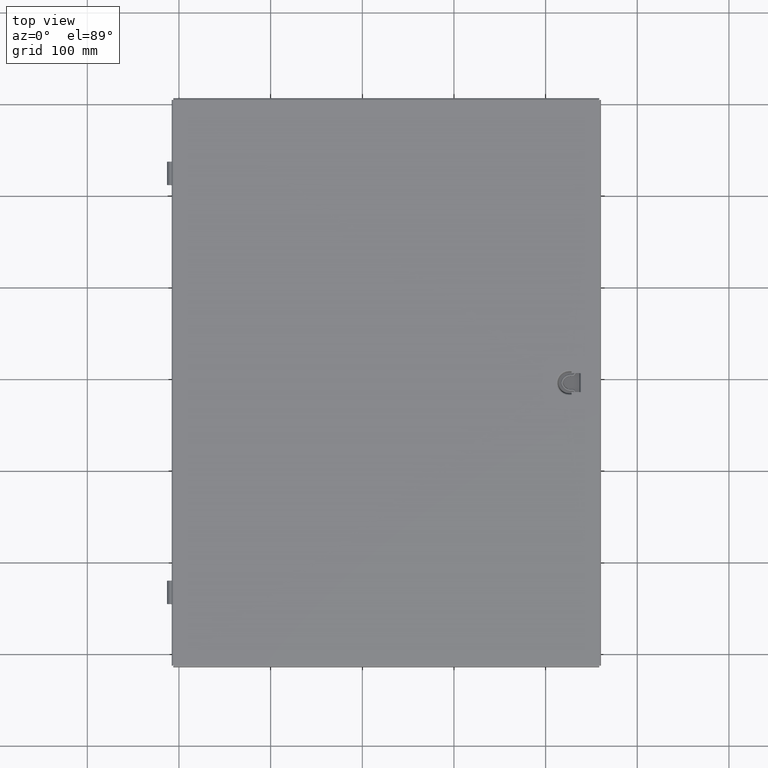
[diagram: clean part render]
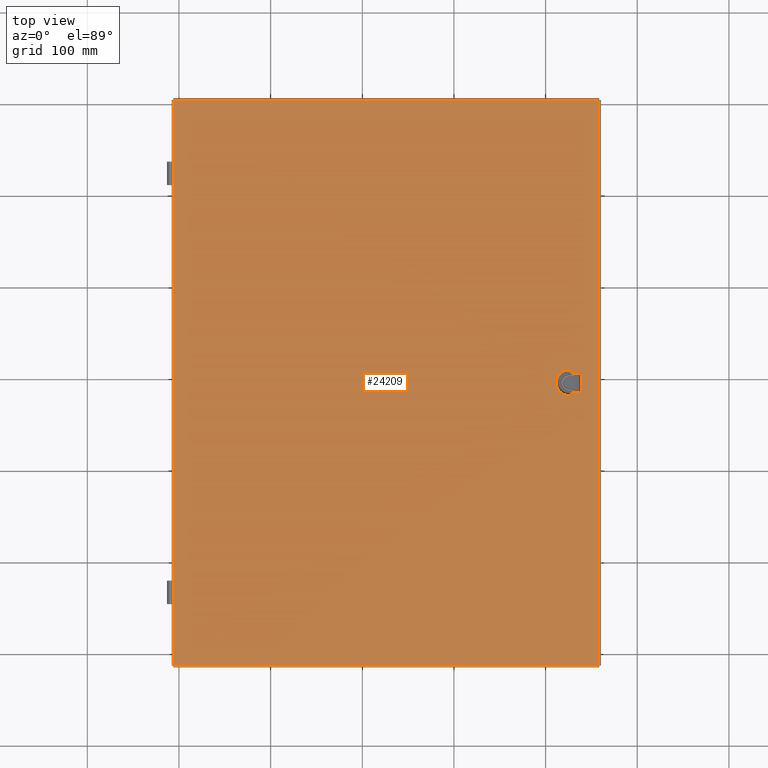
[diagram: same view with one face highlighted and labeled with its STEP entity id]
A machine part, top view. The second image highlights one B-rep face of the part: STEP entity #24209.
In plain terms, the highlighted planar face has unit normal (0, -0, 1).
Its self-contained STEP definition (entity closure, byte-faithful):
#2601=LINE($,#39969,#4981);
#2605=LINE($,#39980,#4985);
#2606=LINE($,#39989,#4986);
#2609=LINE($,#39995,#4989);
#2610=LINE($,#39997,#4990);
#2612=LINE($,#40001,#4992);
#2616=LINE($,#40007,#4996);
#2624=LINE($,#40034,#5004);
#2639=LINE($,#40133,#5019);
#2653=LINE($,#40231,#5033);
#2667=LINE($,#40328,#5047);
#4981=VECTOR($,#31907,0.8125);
#4985=VECTOR($,#31917,0.114999999999999);
#4986=VECTOR($,#31930,0.114999999999999);
#4989=VECTOR($,#31935,0.141707936748685);
#4990=VECTOR($,#31938,0.432957936748683);
#4992=VECTOR($,#31942,0.141707936748685);
#4996=VECTOR($,#31948,0.432957936748683);
#5004=VECTOR($,#31964,24.25);
#5019=VECTOR($,#31993,18.25);
#5033=VECTOR($,#32021,24.25);
#5047=VECTOR($,#32049,18.25);
#5701=FACE_BOUND($,#8508,.T.);
#5702=FACE_BOUND($,#8509,.T.);
#8508=EDGE_LOOP($,(#20667,#20668,#20669,#20670,#20671,#20672,#20673,#20674));
#8509=EDGE_LOOP($,(#20675,#20676,#20677,#20678));
#9055=CIRCLE($,#26005,0.547957936748685);
#10974=VERTEX_POINT($,#39962);
#10977=VERTEX_POINT($,#39967);
#10980=VERTEX_POINT($,#39977);
#10981=VERTEX_POINT($,#39979);
#10982=VERTEX_POINT($,#39983);
#10983=VERTEX_POINT($,#39987);
#10985=VERTEX_POINT($,#39993);
#10986=VERTEX_POINT($,#40000);
#10994=VERTEX_POINT($,#40025);
#10995=VERTEX_POINT($,#40033);
#11004=VERTEX_POINT($,#40125);
#11013=VERTEX_POINT($,#40223);
#14022=EDGE_CURVE($,#10977,#10974,#2601,.T.);
#14027=EDGE_CURVE($,#10980,#10981,#2605,.T.);
#14030=EDGE_CURVE($,#10982,#10980,#9055,.T.);
#14032=EDGE_CURVE($,#10983,#10982,#2606,.T.);
#14035=EDGE_CURVE($,#10983,#10985,#2609,.T.);
#14036=EDGE_CURVE($,#10974,#10985,#2610,.T.);
#14038=EDGE_CURVE($,#10981,#10986,#2612,.T.);
#14042=EDGE_CURVE($,#10977,#10986,#2616,.T.);
#14051=EDGE_CURVE($,#10994,#10995,#2624,.T.);
#14070=EDGE_CURVE($,#11004,#10994,#2639,.T.);
#14088=EDGE_CURVE($,#11013,#11004,#2653,.T.);
#14106=EDGE_CURVE($,#10995,#11013,#2667,.T.);
#20667=ORIENTED_EDGE($,*,*,#14042,.T.);
#20668=ORIENTED_EDGE($,*,*,#14038,.F.);
#20669=ORIENTED_EDGE($,*,*,#14027,.F.);
#20670=ORIENTED_EDGE($,*,*,#14030,.F.);
#20671=ORIENTED_EDGE($,*,*,#14032,.F.);
#20672=ORIENTED_EDGE($,*,*,#14035,.T.);
#20673=ORIENTED_EDGE($,*,*,#14036,.F.);
#20674=ORIENTED_EDGE($,*,*,#14022,.F.);
#20675=ORIENTED_EDGE($,*,*,#14088,.F.);
#20676=ORIENTED_EDGE($,*,*,#14106,.F.);
#20677=ORIENTED_EDGE($,*,*,#14051,.F.);
#20678=ORIENTED_EDGE($,*,*,#14070,.F.);
#21624=PLANE($,#26043);
#24209=ADVANCED_FACE($,(#5701,#5702),#21624,.T.);
#26005=AXIS2_PLACEMENT_3D($,#39985,#31924,#31925);
#26043=AXIS2_PLACEMENT_3D($,#40413,#32073,#32074);
#31907=DIRECTION($,(2.22044604925031E-016,1.,0.));
#31917=DIRECTION($,(1.,-5.71721148114058E-016,0.));
#31924=DIRECTION('center_axis',(0.,0.,1.));
#31925=DIRECTION('ref_axis',(-1.,2.83276944882399E-016,0.));
#31930=DIRECTION($,(-1.,2.22044604925031E-016,0.));
#31935=DIRECTION($,(-2.22044604925031E-016,-1.,0.));
#31938=DIRECTION($,(-1.,2.22044604925031E-016,0.));
#31942=DIRECTION($,(2.22044604925031E-016,1.,0.));
#31948=DIRECTION($,(-1.,-2.32080775839937E-016,0.));
#31964=DIRECTION($,(-2.30714420248429E-016,1.,0.));
#31993=DIRECTION($,(-1.,-1.53282868247244E-016,0.));
#32021=DIRECTION($,(1.15357210124215E-016,-1.,0.));
#32049=DIRECTION($,(1.,0.,0.));
#32073=DIRECTION('center_axis',(0.,0.,1.));
#32074=DIRECTION('ref_axis',(1.,0.,0.));
#39962=CARTESIAN_POINT('',(8.39120793674868,0.406250000000001,0.062));
#39967=CARTESIAN_POINT('',(8.39120793674868,-0.406249999999999,0.062));
#39969=CARTESIAN_POINT($,(8.39120793674868,-0.25,0.062));
#39977=CARTESIAN_POINT('',(7.84325,-0.547957936748683,0.062));
#39979=CARTESIAN_POINT('',(7.95825,-0.547957936748683,0.062));
#39980=CARTESIAN_POINT($,(3.921625,-0.547957936748681,0.062));
#39983=CARTESIAN_POINT('',(7.84325,0.547957936748686,0.062));
#39985=CARTESIAN_POINT('Origin',(7.84325,1.3987061727561E-015,0.062));
#39987=CARTESIAN_POINT('',(7.95825,0.547957936748686,0.062));
#39989=CARTESIAN_POINT($,(4.171625,0.547957936748687,0.062));
#39993=CARTESIAN_POINT('',(7.95825,0.406250000000001,0.062));
#39995=CARTESIAN_POINT($,(7.95825,0.500000000000001,0.062));
#39997=CARTESIAN_POINT($,(4.171625,0.406250000000002,0.062));
#40000=CARTESIAN_POINT('',(7.95825,-0.406249999999999,0.062));
#40001=CARTESIAN_POINT($,(7.95825,-0.25,0.062));
#40007=CARTESIAN_POINT($,(8.34325,-0.406249999999999,0.062));
#40025=CARTESIAN_POINT('',(-9.125,-12.125,0.062));
#40033=CARTESIAN_POINT('',(-9.125,12.125,0.062));
#40034=CARTESIAN_POINT($,(-9.125,-12.125,0.062));
#40125=CARTESIAN_POINT('',(9.125,-12.125,0.062));
#40133=CARTESIAN_POINT($,(9.125,-12.125,0.062));
#40223=CARTESIAN_POINT('',(9.125,12.125,0.062));
#40231=CARTESIAN_POINT($,(9.125,12.125,0.062));
#40328=CARTESIAN_POINT($,(-9.125,12.125,0.062));
#40413=CARTESIAN_POINT('Origin',(-1.3987061727561E-015,9.89565917944558E-016,
0.062));